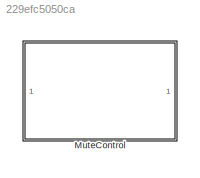
MODEL slx_229efc5050ca
KIND library
CONFIG AbsTol = auto
CONFIG EnableMultiTasking = off
CONFIG FixedStep = auto
CONFIG MaxStep = auto
CONFIG MinStep = auto
CONFIG RelTol = 1e-3
CONFIG SampleTimeConstraint = Unconstrained
CONFIG SolverName = VariableStepAuto
CONFIG StartTime = 0.0
CONFIG StopTime = 10.0
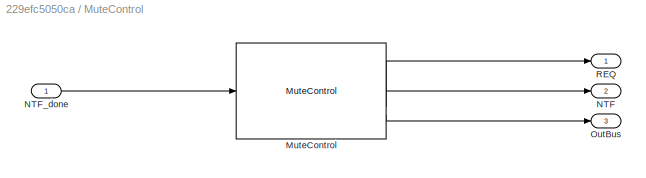
BLOCK [SubSystem] MuteControl
BLOCK [Reference] MuteControl/MuteControl  REF=MuteControlBtc/MuteControl
  SourceBlock = MuteControlBtc/MuteControl
  SourceProductName = Bose Blocklib
  SourceType = Blocklib MuteControl
BLOCK [Outport] MuteControl/NTF
  Port = 2
BLOCK [Inport] MuteControl/NTF_done
BLOCK [Outport] MuteControl/OutBus
  Port = 3
BLOCK [Outport] MuteControl/REQ
LINE MuteControl/MuteControl:1 -> MuteControl/REQ:1
LINE MuteControl/MuteControl:2 -> MuteControl/NTF:1
LINE MuteControl/MuteControl:3 -> MuteControl/OutBus:1
LINE MuteControl/NTF_done:1 -> MuteControl/MuteControl:1
